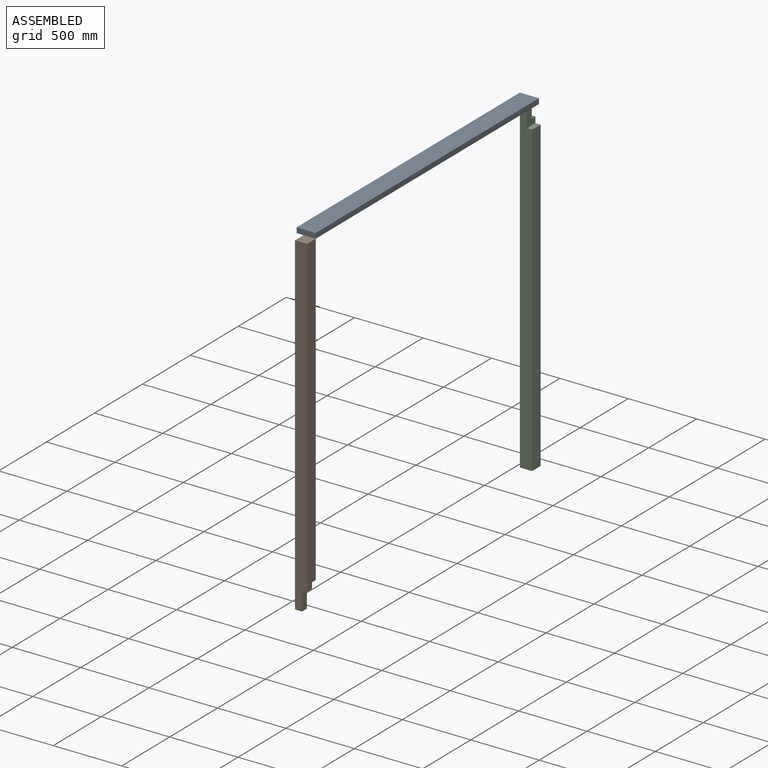
[diagram: assembled view]
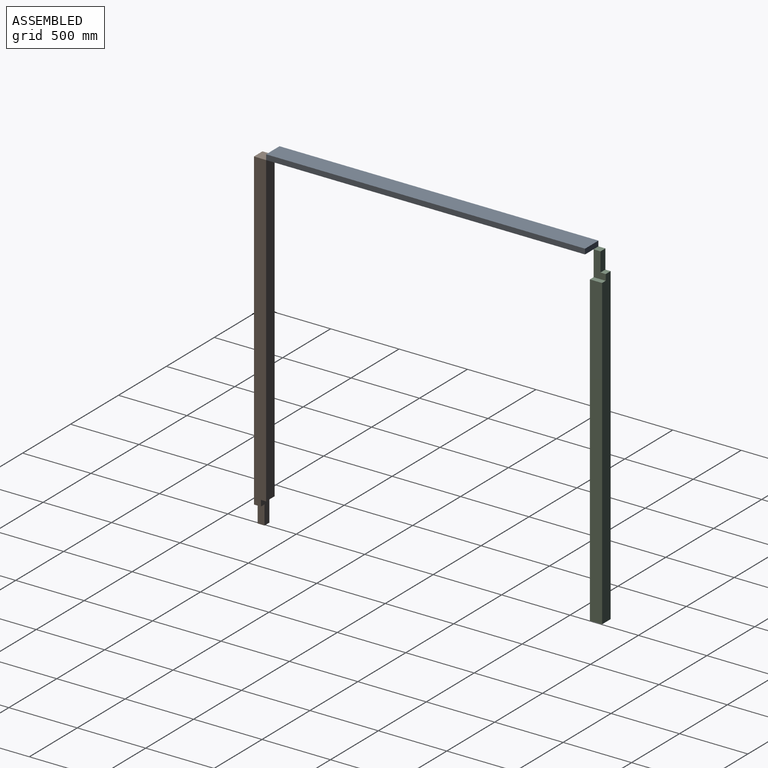
[diagram: assembled view, second angle]
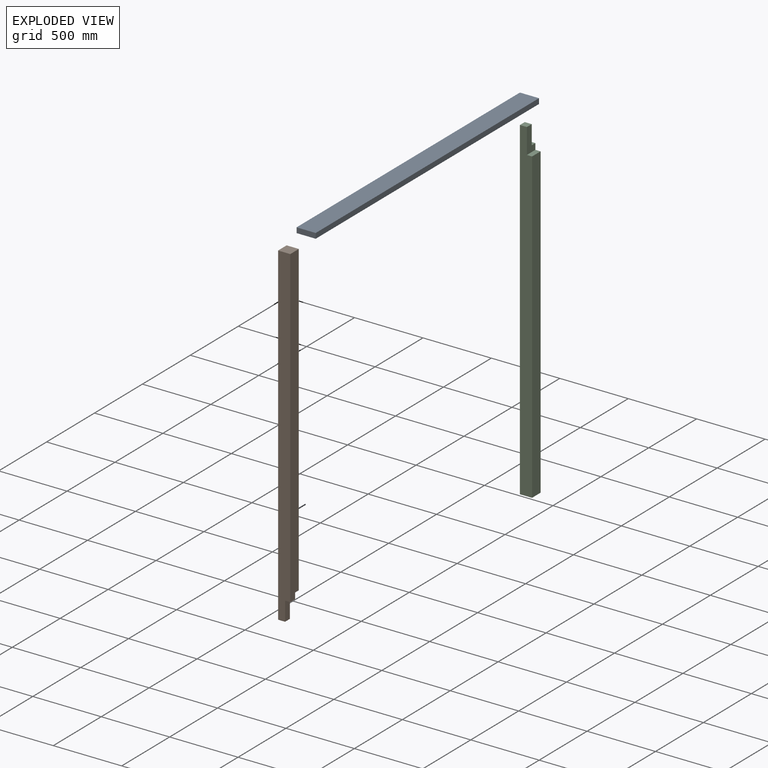
[diagram: exploded view]
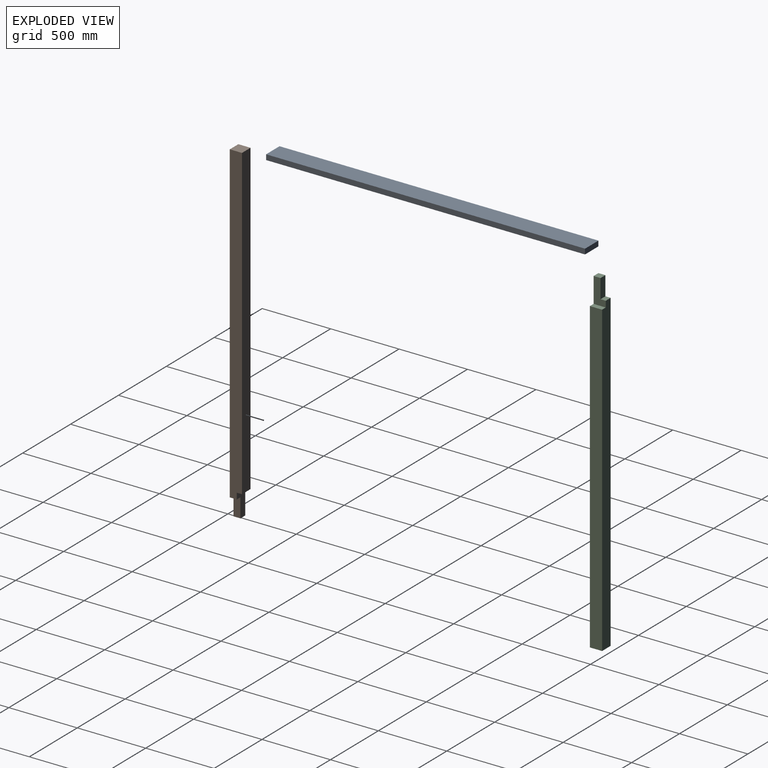
[diagram: exploded view, second angle]
ASSEMBLY  parts=3 mates=2
PART A: 6 faces, bbox 139.7x38.1x2330.5 mm
  f0: plane 2330.45x139.7mm, normal (0,-1,0), area 325563.9mm2, adj f1,f3,f4,f5
  f1: plane 2330.45x38.1mm, normal (1,0,0), area 88790.1mm2, adj f0,f2,f4,f5
  f2: plane 2330.45x139.7mm, normal (0,1,0), area 325563.9mm2, adj f1,f3,f4,f5
  f3: plane 2330.45x38.1mm, normal (-1,0,0), area 88790.1mm2, adj f0,f2,f4,f5
  f4: plane 139.7x38.1mm, normal (0,0,1), area 5322.6mm2, adj f0,f1,f2,f3
  f5: plane 139.7x38.1mm, normal (0,0,-1), area 5322.6mm2, adj f0,f1,f2,f3
PART B: 10 faces, bbox 88.9x88.9x2438.4 mm
  f0: plane 2298.7x88.9mm, normal (0,1,0), area 202660.9mm2, adj f1,f2,f3,f6,f7,f9
  f1: plane 2438.4x88.9mm, normal (-1,0,0), area 211451.2mm2, adj f0,f4,f5,f6,f8,f9
  f2: plane 184.15x88.9mm, normal (1,0,0), area 11048.4mm2, adj f0,f4,f5,f7,f8,f9
  f3: plane 2254.25x88.9mm, normal (1,0,0), area 200402.8mm2, adj f0,f5,f6,f7
  f4: plane 50.8x50.8mm, normal (0,0,1), area 2580.6mm2, adj f1,f2,f5,f8
  f5: plane 2438.4x88.9mm, normal (0,-1,0), area 209757.6mm2, adj f1,f2,f3,f4,f6,f7
  f6: plane 88.9x88.9mm, normal (0,0,-1), area 7903.2mm2, adj f0,f1,f3,f5
  f7: plane 88.9x38.1mm, normal (0,0,1), area 3387.1mm2, adj f0,f2,f3,f5
  f8: plane 139.7x50.8mm, normal (0,1,0), area 7096.8mm2, adj f1,f2,f4,f9
  f9: plane 50.8x38.1mm, normal (0,0,1), area 1935.5mm2, adj f0,f1,f2,f8
PART C: same geometry as B
PLACE A rot(axis=(1,0,0),90deg) t=(-3543.4,1425.64,4074.99)mm
PLACE B rot(axis=(0.71,0.71,0),180deg) t=(-3638.34,-993.71,3967.67)mm
PLACE C t=(-3689.14,1425.64,1529.27)mm
MATE fastened C.f4 <-> A.f0  axis (0,0,1) through (-3689.14,1425.64,3967.67)mm
MATE fastened A.f4 <-> B.f3  axis (0,-1,0) through (-3549.44,-904.81,3967.67)mm
